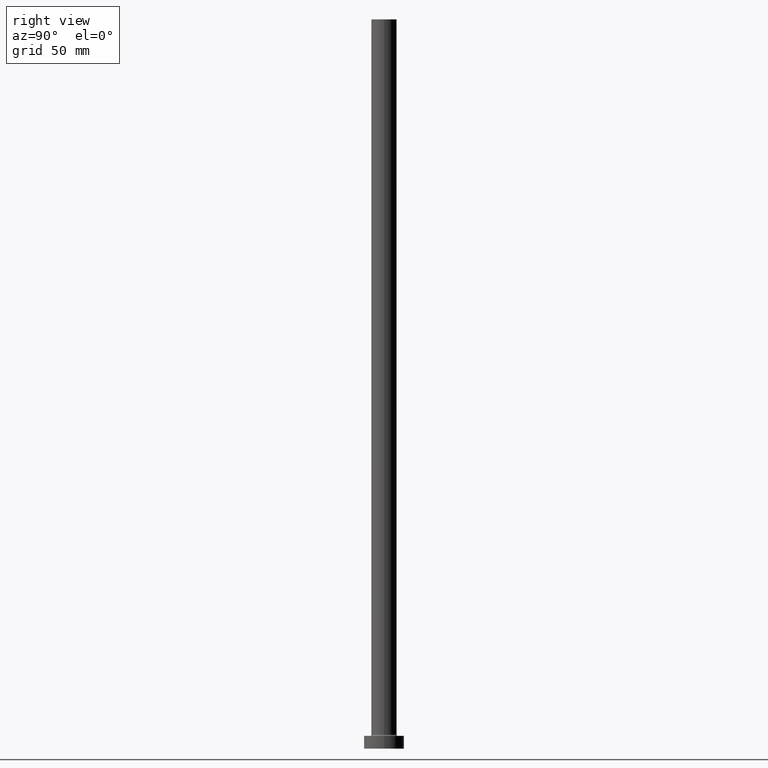
[diagram: clean part render]
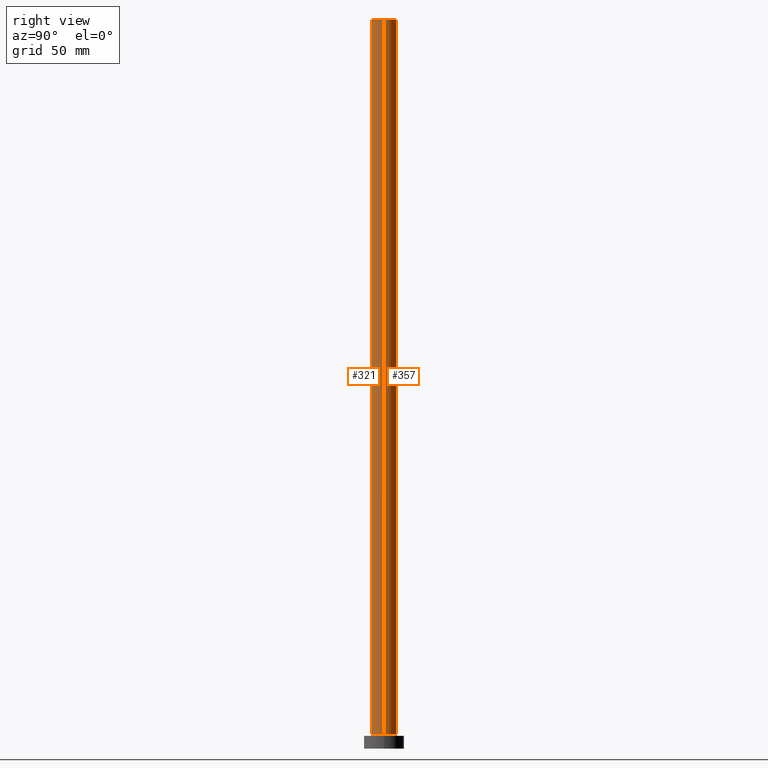
[diagram: same view with one multi-face feature highlighted, each face labeled with its STEP entity id]
A machine part, right view. The highlighted faces form ONE feature: a constant-radius fillet chain: 2 tangent blend faces with common blend radius 7 mm. The faces share edges in the B-rep.
Their STEP definitions:
[1] entity #357 (Cylinder):
#10 = CARTESIAN_POINT ( 'NONE',  ( 7.000000000000000888, 8.572527594031474176E-16, 400.0000000000000000 ) ) ;
#35 = VERTEX_POINT ( 'NONE', #77 ) ;
#51 = DIRECTION ( 'NONE',  ( 0.000000000000000000, 0.000000000000000000, 1.000000000000000000 ) ) ;
#66 = LINE ( 'NONE', #137, #184 ) ;
#77 = CARTESIAN_POINT ( 'NONE',  ( -7.000000000000000888, 0.000000000000000000, 400.0000000000000000 ) ) ;
#83 = CARTESIAN_POINT ( 'NONE',  ( -7.000000000000000888, 0.000000000000000000, 400.0000000000000000 ) ) ;
#88 = AXIS2_PLACEMENT_3D ( 'NONE', #350, #197, #133 ) ;
#93 = CARTESIAN_POINT ( 'NONE',  ( 7.000000000000000888, 8.572527594031474176E-16, 7.699999999999985079 ) ) ;
#94 = VERTEX_POINT ( 'NONE', #10 ) ;
#97 = FACE_OUTER_BOUND ( 'NONE', #98, .T. ) ;
#98 = EDGE_LOOP ( 'NONE', ( #311, #386, #102, #172 ) ) ;
#100 = EDGE_CURVE ( 'NONE', #94, #35, #344, .T. ) ;
#102 = ORIENTED_EDGE ( 'NONE', *, *, #373, .T. ) ;
#103 = CYLINDRICAL_SURFACE ( 'NONE', #207, 7.000000000000000888 ) ;
#117 = VECTOR ( 'NONE', #226, 1000.000000000000000 ) ;
#133 = DIRECTION ( 'NONE',  ( 1.000000000000000000, 0.000000000000000000, 0.000000000000000000 ) ) ;
#137 = CARTESIAN_POINT ( 'NONE',  ( 7.000000000000000888, 8.572527594031474176E-16, 400.0000000000000000 ) ) ;
#171 = DIRECTION ( 'NONE',  ( -0.000000000000000000, -0.000000000000000000, -1.000000000000000000 ) ) ;
#172 = ORIENTED_EDGE ( 'NONE', *, *, #215, .F. ) ;
#175 = CARTESIAN_POINT ( 'NONE',  ( -7.000000000000000888, 0.000000000000000000, 7.699999999999985079 ) ) ;
#184 = VECTOR ( 'NONE', #342, 1000.000000000000000 ) ;
#197 = DIRECTION ( 'NONE',  ( 0.000000000000000000, 0.000000000000000000, 1.000000000000000000 ) ) ;
#205 = CARTESIAN_POINT ( 'NONE',  ( 0.000000000000000000, 0.000000000000000000, 400.0000000000000000 ) ) ;
#207 = AXIS2_PLACEMENT_3D ( 'NONE', #205, #171, #237 ) ;
#215 = EDGE_CURVE ( 'NONE', #35, #298, #442, .T. ) ;
#226 = DIRECTION ( 'NONE',  ( -0.000000000000000000, -0.000000000000000000, -1.000000000000000000 ) ) ;
#237 = DIRECTION ( 'NONE',  ( -1.000000000000000000, 0.000000000000000000, 0.000000000000000000 ) ) ;
#263 = CARTESIAN_POINT ( 'NONE',  ( 0.000000000000000000, 0.000000000000000000, 400.0000000000000000 ) ) ;
#274 = VERTEX_POINT ( 'NONE', #93 ) ;
#296 = CIRCLE ( 'NONE', #88, 7.000000000000000888 ) ;
#298 = VERTEX_POINT ( 'NONE', #175 ) ;
#301 = DIRECTION ( 'NONE',  ( 1.000000000000000000, 0.000000000000000000, 0.000000000000000000 ) ) ;
#309 = AXIS2_PLACEMENT_3D ( 'NONE', #263, #51, #301 ) ;
#311 = ORIENTED_EDGE ( 'NONE', *, *, #100, .F. ) ;
#342 = DIRECTION ( 'NONE',  ( -0.000000000000000000, -0.000000000000000000, -1.000000000000000000 ) ) ;
#344 = CIRCLE ( 'NONE', #309, 7.000000000000000888 ) ;
#347 = EDGE_CURVE ( 'NONE', #94, #274, #66, .T. ) ;
#350 = CARTESIAN_POINT ( 'NONE',  ( 0.000000000000000000, 0.000000000000000000, 7.699999999999985079 ) ) ;
#357 = ADVANCED_FACE ( 'NONE', ( #97 ), #103, .T. ) ;
#373 = EDGE_CURVE ( 'NONE', #274, #298, #296, .T. ) ;
#386 = ORIENTED_EDGE ( 'NONE', *, *, #347, .T. ) ;
#442 = LINE ( 'NONE', #83, #117 ) ;
[2] entity #321 (Cylinder):
#10 = CARTESIAN_POINT ( 'NONE',  ( 7.000000000000000888, 8.572527594031474176E-16, 400.0000000000000000 ) ) ;
#23 = ORIENTED_EDGE ( 'NONE', *, *, #447, .T. ) ;
#35 = VERTEX_POINT ( 'NONE', #77 ) ;
#38 = CIRCLE ( 'NONE', #302, 7.000000000000000888 ) ;
#48 = DIRECTION ( 'NONE',  ( 1.000000000000000000, 0.000000000000000000, 0.000000000000000000 ) ) ;
#65 = ORIENTED_EDGE ( 'NONE', *, *, #215, .T. ) ;
#66 = LINE ( 'NONE', #137, #184 ) ;
#77 = CARTESIAN_POINT ( 'NONE',  ( -7.000000000000000888, 0.000000000000000000, 400.0000000000000000 ) ) ;
#83 = CARTESIAN_POINT ( 'NONE',  ( -7.000000000000000888, 0.000000000000000000, 400.0000000000000000 ) ) ;
#93 = CARTESIAN_POINT ( 'NONE',  ( 7.000000000000000888, 8.572527594031474176E-16, 7.699999999999985079 ) ) ;
#94 = VERTEX_POINT ( 'NONE', #10 ) ;
#117 = VECTOR ( 'NONE', #226, 1000.000000000000000 ) ;
#137 = CARTESIAN_POINT ( 'NONE',  ( 7.000000000000000888, 8.572527594031474176E-16, 400.0000000000000000 ) ) ;
#141 = DIRECTION ( 'NONE',  ( -1.000000000000000000, 0.000000000000000000, 0.000000000000000000 ) ) ;
#146 = ORIENTED_EDGE ( 'NONE', *, *, #347, .F. ) ;
#153 = DIRECTION ( 'NONE',  ( 1.000000000000000000, 0.000000000000000000, 0.000000000000000000 ) ) ;
#175 = CARTESIAN_POINT ( 'NONE',  ( -7.000000000000000888, 0.000000000000000000, 7.699999999999985079 ) ) ;
#179 = EDGE_LOOP ( 'NONE', ( #146, #217, #65, #23 ) ) ;
#184 = VECTOR ( 'NONE', #342, 1000.000000000000000 ) ;
#199 = CIRCLE ( 'NONE', #338, 7.000000000000000888 ) ;
#201 = CYLINDRICAL_SURFACE ( 'NONE', #316, 7.000000000000000888 ) ;
#215 = EDGE_CURVE ( 'NONE', #35, #298, #442, .T. ) ;
#217 = ORIENTED_EDGE ( 'NONE', *, *, #250, .F. ) ;
#220 = DIRECTION ( 'NONE',  ( 0.000000000000000000, 0.000000000000000000, 1.000000000000000000 ) ) ;
#223 = CARTESIAN_POINT ( 'NONE',  ( 0.000000000000000000, 0.000000000000000000, 400.0000000000000000 ) ) ;
#226 = DIRECTION ( 'NONE',  ( -0.000000000000000000, -0.000000000000000000, -1.000000000000000000 ) ) ;
#250 = EDGE_CURVE ( 'NONE', #35, #94, #199, .T. ) ;
#274 = VERTEX_POINT ( 'NONE', #93 ) ;
#281 = FACE_OUTER_BOUND ( 'NONE', #179, .T. ) ;
#287 = CARTESIAN_POINT ( 'NONE',  ( 0.000000000000000000, 0.000000000000000000, 7.699999999999985079 ) ) ;
#295 = DIRECTION ( 'NONE',  ( 0.000000000000000000, 0.000000000000000000, 1.000000000000000000 ) ) ;
#298 = VERTEX_POINT ( 'NONE', #175 ) ;
#302 = AXIS2_PLACEMENT_3D ( 'NONE', #287, #295, #153 ) ;
#316 = AXIS2_PLACEMENT_3D ( 'NONE', #341, #449, #141 ) ;
#321 = ADVANCED_FACE ( 'NONE', ( #281 ), #201, .T. ) ;
#338 = AXIS2_PLACEMENT_3D ( 'NONE', #223, #220, #48 ) ;
#341 = CARTESIAN_POINT ( 'NONE',  ( 0.000000000000000000, 0.000000000000000000, 400.0000000000000000 ) ) ;
#342 = DIRECTION ( 'NONE',  ( -0.000000000000000000, -0.000000000000000000, -1.000000000000000000 ) ) ;
#347 = EDGE_CURVE ( 'NONE', #94, #274, #66, .T. ) ;
#442 = LINE ( 'NONE', #83, #117 ) ;
#447 = EDGE_CURVE ( 'NONE', #298, #274, #38, .T. ) ;
#449 = DIRECTION ( 'NONE',  ( -0.000000000000000000, -0.000000000000000000, -1.000000000000000000 ) ) ;